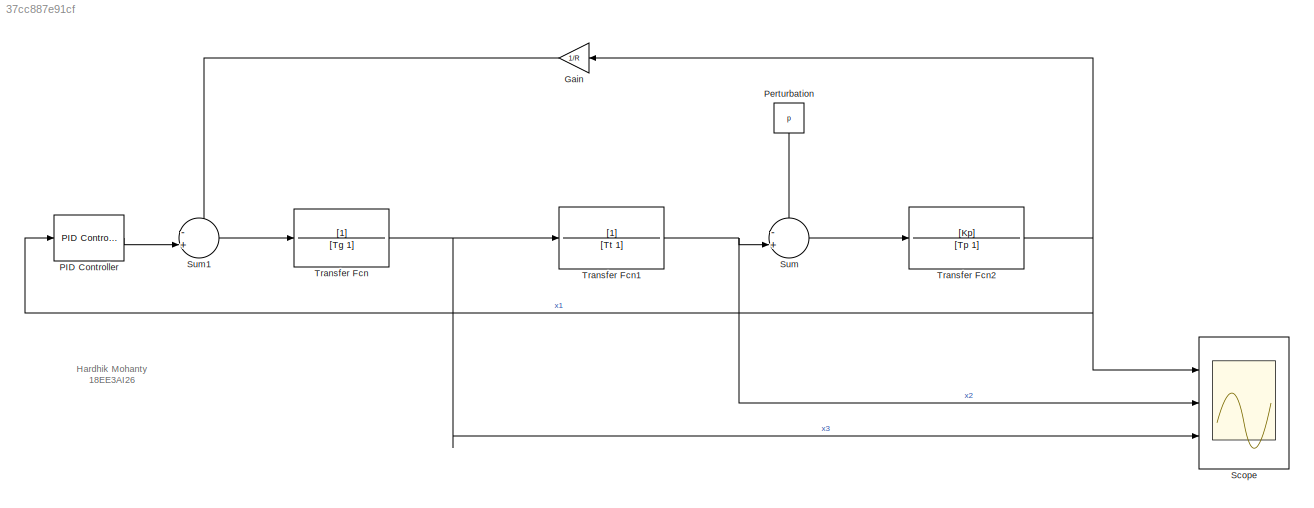
MODEL slx_37cc887e91cf
KIND model
CONFIG AbsTol = auto
CONFIG EnableMultiTasking = off
CONFIG FixedStep = 0.001
CONFIG MaxStep = auto
CONFIG MinStep = auto
CONFIG RelTol = 1e-3
CONFIG SampleTimeConstraint = Unconstrained
CONFIG SolverName = ode4
CONFIG StartTime = 0.0
CONFIG StopTime = 20
BLOCK [Gain] Gain
  Gain = 1/R
BLOCK [Reference] PID Controller  REF=pid_lib/PID Controller
  Ports = [1, 1]
  SourceBlock = pid_lib/PID Controller
  SourceProductBaseCode = SL
  SourceType = PID 1dof
BLOCK [Constant] Perturbation
  NameLocation = left
  Value = p
BLOCK [Scope] Scope
  Floating = off
  NumInputPorts = 3
  Ports = [3]
  ScopeSpecificationString = Simulink.scopes.TimeScopeBlockCfg('CurrentConfiguration', extmgr.ConfigurationSet(extmgr.Configuration('Core','General UI',true),extmgr.Configuration('Core','Source UI',true),extmgr.Configuration('Sources','WiredSimulink',true,'DataLogging',true,'DataLoggingSaveFormat','StructureWithTime'),extmgr.Configuration('Visuals','Time Domain',true,'SerializedDisplays',{struct('MinYLimReal','-0.02732','MaxY...<+1437ch>
BLOCK [Sum] Sum
  Inputs = -+|
  Ports = [2, 1]
BLOCK [Sum] Sum1
  Inputs = -+|
  Ports = [2, 1]
BLOCK [TransferFcn] Transfer Fcn
  Denominator = [Tg 1]
BLOCK [TransferFcn] Transfer Fcn1
  Denominator = [Tt 1]
BLOCK [TransferFcn] Transfer Fcn2
  Denominator = [Tp 1]
  Numerator = [Kp]
ANNOTATION (root): Hardhik Mohanty 18EE3AI26
LINE Gain:1 -> Sum1:1
LINE PID Controller:1 -> Sum1:2
LINE Perturbation:1 -> Sum:1
LINE Sum1:1 -> Transfer Fcn:1
LINE Sum:1 -> Transfer Fcn2:1
NET Transfer Fcn1:1 -> Scope:2, Sum:2
NET Transfer Fcn2:1 -> Gain:1, PID Controller:1, Scope:1
NET Transfer Fcn:1 -> Scope:3, Transfer Fcn1:1
note: NET lines group one-source signal fan-out (src -> all destinations, sorted); 1:1 wires keep LINE
